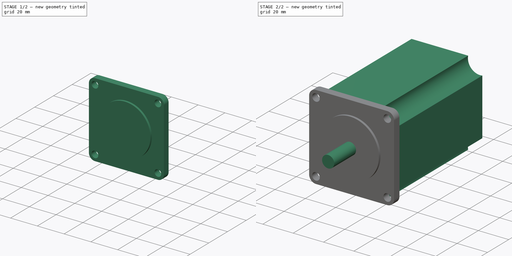
[diagram: build sequence overview — one tinted view per stage of 2, left to right]
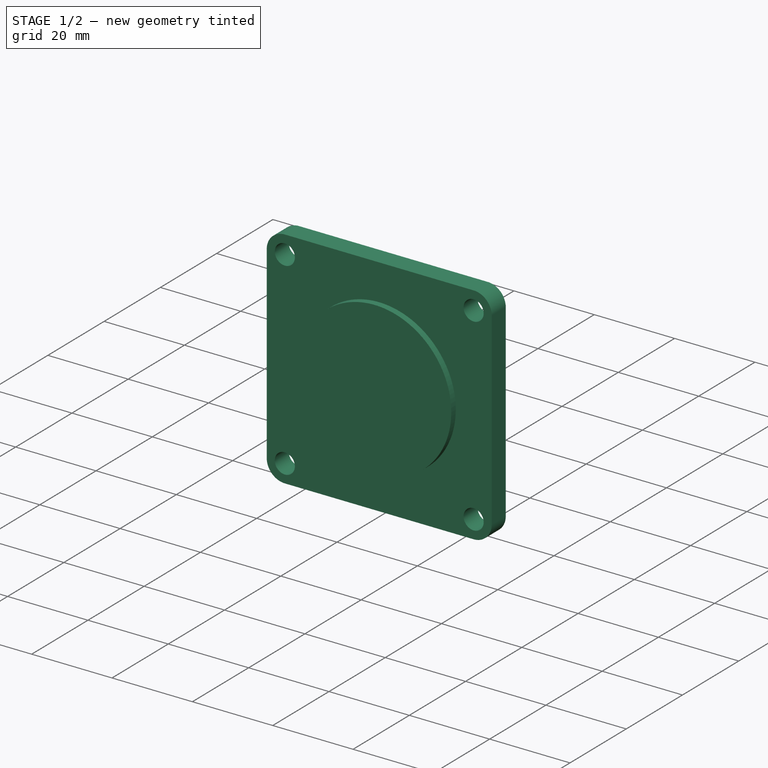
[diagram: stage 1 of 2 — iso view after this stage's code; geometry added in this stage tinted green]
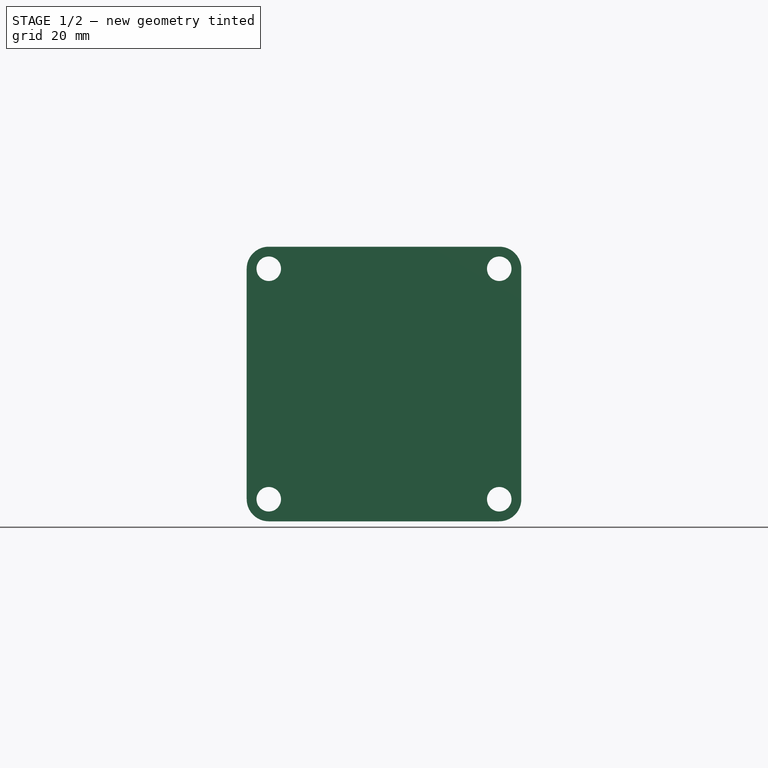
[diagram: stage 1 of 2 — front view after this stage's code; geometry added in this stage tinted green]
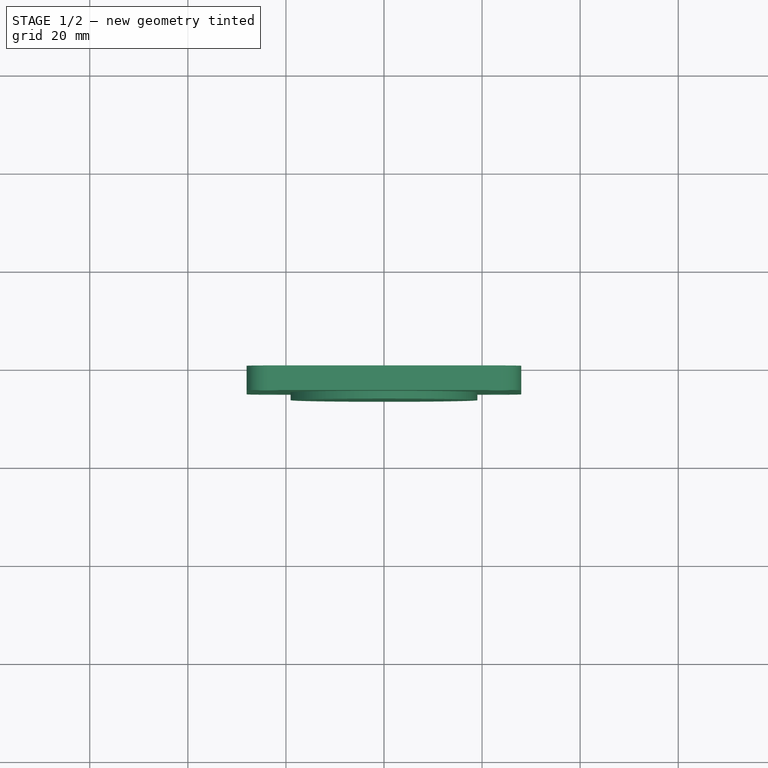
[diagram: stage 1 of 2 — top view after this stage's code; geometry added in this stage tinted green]
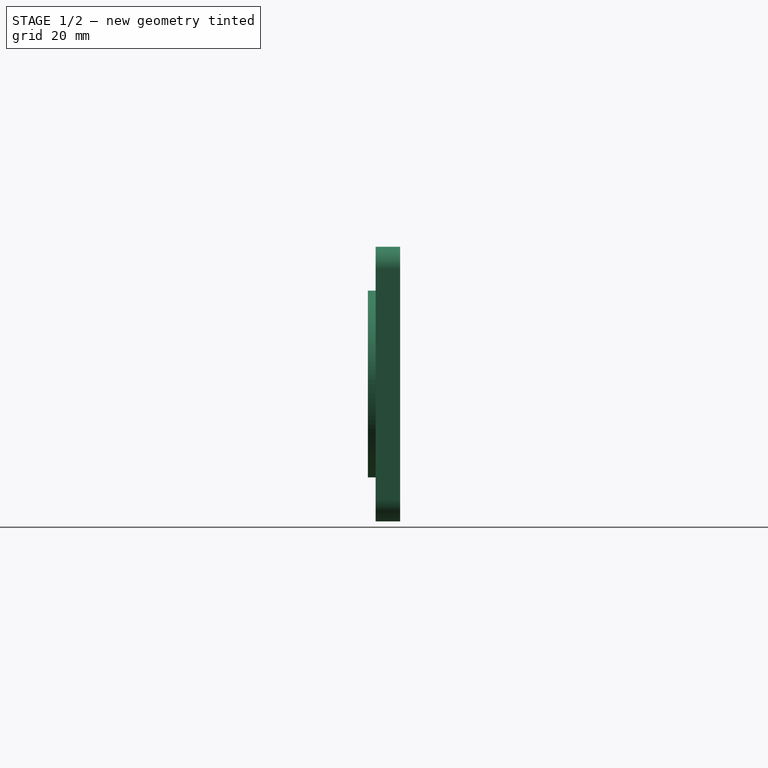
[diagram: stage 1 of 2 — right view after this stage's code; geometry added in this stage tinted green]
FCSTD DOCUMENT  (FreeCAD 0.19R)
Label: nema_23
License: All rights reserved
LicenseURL: http://en.wikipedia.org/wiki/All_rights_reserved
objects: Sketcher::SketchObject×4, PartDesign::Pad×4, PartDesign::CoordinateSystem×4, PartDesign::Body×1
note: 17 computed .brp shape members not serialized (recipe doc carries the construction recipe); baked Part::Feature solids carry a one-line shape summary decoded from their .brp

FEATURE [Sketcher::SketchObject] Sketch
  FullyConstrained = true
  MapMode = 5
  Placement = pos=(0,0,0) rot=(1,0,0;1.5708rad)
  Support = -> [XZ_Plane]
  sketch-geometry (12):
    g0: LineSegment StartX=-28 StartY=23.5 StartZ=0 EndX=-28 EndY=-23.5 EndZ=0
    g1: LineSegment StartX=28 StartY=23.5 StartZ=0 EndX=28 EndY=-23.5 EndZ=0
    g2: LineSegment StartX=-23.5 StartY=28 StartZ=0 EndX=23.5 EndY=28 EndZ=0
    g3: LineSegment StartX=-23.5 StartY=-28 StartZ=0 EndX=23.5 EndY=-28 EndZ=0
    g4: ArcOfCircle CenterX=-23.5 CenterY=-23.5 CenterZ=0 NormalX=0 NormalY=0 NormalZ=1 AngleXU=0 Radius=4.5 StartAngle=3.14159 EndAngle=4.71239
    g5: ArcOfCircle CenterX=-23.5 CenterY=23.5 CenterZ=0 NormalX=0 NormalY=0 NormalZ=1 AngleXU=0 Radius=4.5 StartAngle=1.5708 EndAngle=3.14159
    g6: ArcOfCircle CenterX=23.5 CenterY=23.5 CenterZ=0 NormalX=0 NormalY=0 NormalZ=1 AngleXU=0 Radius=4.5 StartAngle=6.28318 EndAngle=7.85398
    g7: ArcOfCircle CenterX=23.5 CenterY=-23.5 CenterZ=0 NormalX=0 NormalY=0 NormalZ=1 AngleXU=0 Radius=4.5 StartAngle=4.71239 EndAngle=6.28319
    g8: Circle CenterX=-23.5 CenterY=23.5 CenterZ=0 NormalX=0 NormalY=0 NormalZ=1 AngleXU=0 Radius=2.5
    g9: Circle CenterX=23.5 CenterY=23.5 CenterZ=0 NormalX=0 NormalY=0 NormalZ=1 AngleXU=0 Radius=2.5
    g10: Circle CenterX=-23.5 CenterY=-23.5 CenterZ=0 NormalX=0 NormalY=0 NormalZ=1 AngleXU=0 Radius=2.5
    g11: Circle CenterX=23.5 CenterY=-23.5 CenterZ=0 NormalX=0 NormalY=0 NormalZ=1 AngleXU=0 Radius=2.5
  constraints (33):
    c: Vertical(g0)
    c: Vertical(g1)
    c: Horizontal(g2)
    c: Coincident(g4,g0)
    c: Coincident(g4,g3)
    c: Coincident(g5,g2)
    c: Coincident(g6,g2)
    c: Coincident(g6,g1)
    c: Coincident(g7,g1)
    c: Coincident(g7,g3)
    c: Coincident(g5,g0)
    c: Equal(g9,g8)
    c: Equal(g8,g10)
    c: Equal(g10,g11)
    c: Diameter(g8) = 5
    c: Symmetric(g4,g7,g-2)
    c: Symmetric(g7,g6,g-1)
    c: Symmetric(g8,g9,g-2)
    c: Symmetric(g5,g6,g-2)
    c: Equal(g3,g0)
    c: Equal(g0,g2)
    c: Equal(g2,g1)
    c: DistanceX(g0,g1) = 56
    c: DistanceY(g3,g2) = 56
    c: Symmetric(g11,g9,g-1)
    c: Symmetric(g10,g11,g-2)
    c: DistanceX(g10,g11) = 47
    c: DistanceY(g11,g9) = 47
    c: Equal(g6,g5)
    c: Equal(g5,g4)
    c: Equal(g4,g7)
    c: Coincident(g7,g11)
    c: Radius(g5) = 4.5
FEATURE [PartDesign::Pad] Pad
  Direction = (1,1,1)
  Length = 5
  Length2 = 100
  Placement = pos=(0,0,0) rot=(1,0,0;1.5708rad)
  Profile = -> Sketch
  Type = 0
FEATURE [Sketcher::SketchObject] Sketch001
  FullyConstrained = true
  MapMode = 5
  Placement = pos=(0,-5,1.1e-15) rot=(1,0,0;1.5708rad)
  Support = -> [Pad]
  sketch-geometry (1):
    g0: Circle CenterX=0 CenterY=0 CenterZ=0 NormalX=0 NormalY=0 NormalZ=1 AngleXU=0 Radius=19.05
  constraints (2):
    c: Coincident(g0,g-1)
    c: Diameter(g0) = 38.1
FEATURE [PartDesign::Pad] Pad001
  BaseFeature = -> Pad
  Direction = (1,1,1)
  Length = 1.6
  Length2 = 100
  Placement = pos=(0,0,0) rot=(1,0,0;1.5708rad)
  Profile = -> Sketch001
  Type = 0
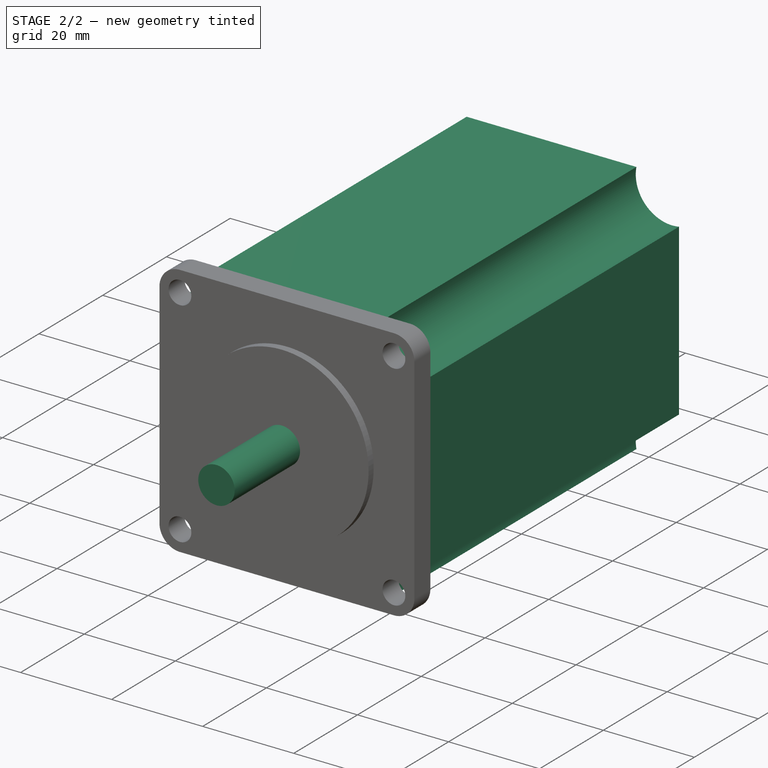
[diagram: stage 2 of 2 — iso view after this stage's code; geometry added in this stage tinted green]
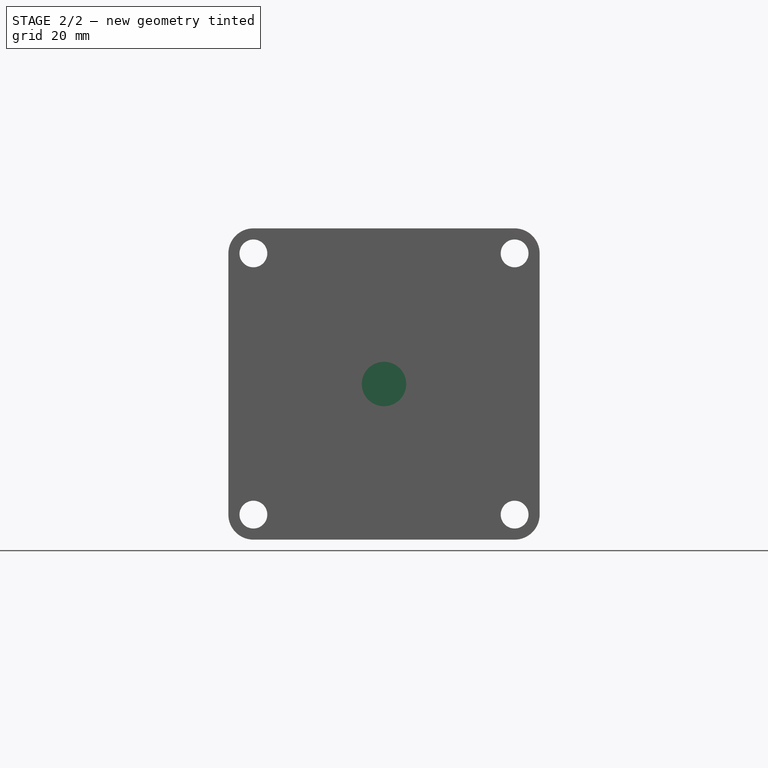
[diagram: stage 2 of 2 — front view after this stage's code; geometry added in this stage tinted green]
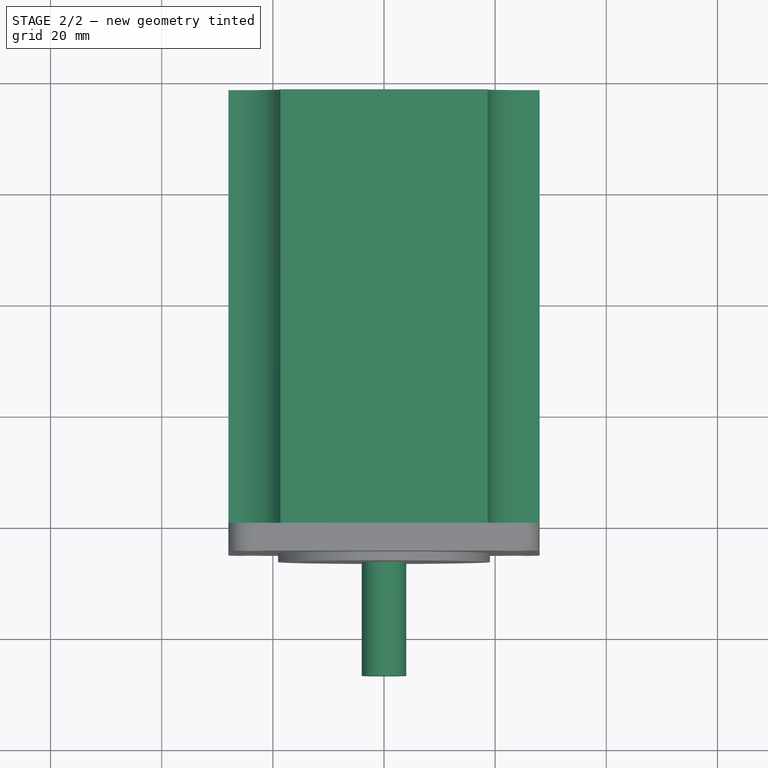
[diagram: stage 2 of 2 — top view after this stage's code; geometry added in this stage tinted green]
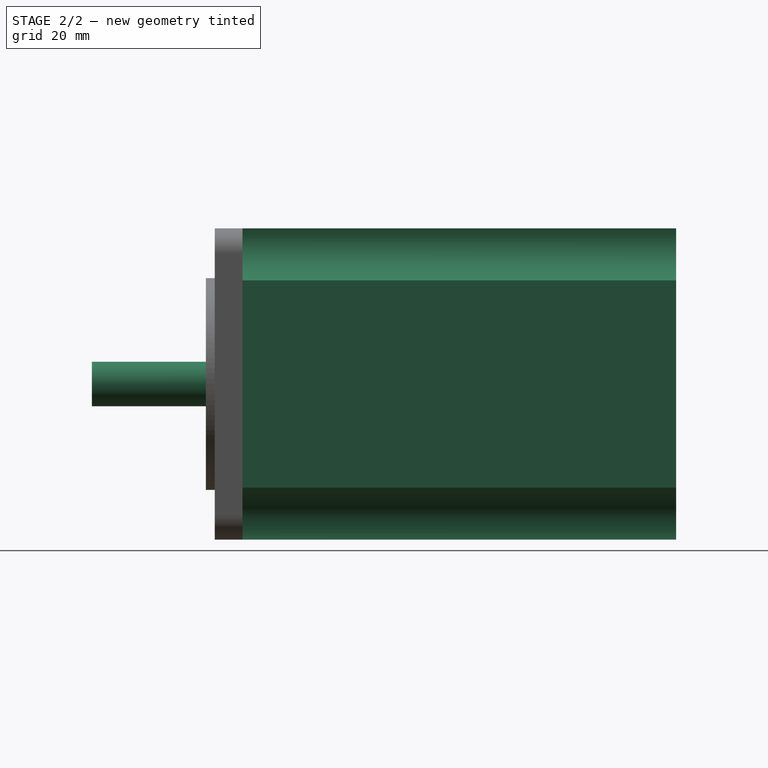
[diagram: stage 2 of 2 — right view after this stage's code; geometry added in this stage tinted green]
FEATURE [Sketcher::SketchObject] Sketch002
  FullyConstrained = true
  MapMode = 5
  Placement = pos=(0,-6.6,4.9e-15) rot=(1,0,0;1.5708rad)
  Support = -> [Pad001]
  sketch-geometry (1):
    g0: Circle CenterX=0 CenterY=0 CenterZ=0 NormalX=0 NormalY=0 NormalZ=1 AngleXU=0 Radius=4
  constraints (2):
    c: Coincident(g0,g-1)
    c: Diameter(g0) = 8
FEATURE [PartDesign::Pad] Pad002
  BaseFeature = -> Pad001
  Direction = (1,1,1)
  Length = 20.5
  Length2 = 100
  Placement = pos=(0,0,0) rot=(1,0,0;1.5708rad)
  Profile = -> Sketch002
  Type = 0
FEATURE [Sketcher::SketchObject] Sketch003
  ExternalGeometry = -> [Pad002]
  FullyConstrained = true
  MapMode = 5
  Placement = pos=(0,0,0) rot=(-1,0,0;1.5708rad)
  Support = -> [Pad002]
  sketch-geometry (8):
    g0: LineSegment StartX=-18.6419 StartY=28 StartZ=0 EndX=18.6419 EndY=28 EndZ=0
    g1: LineSegment StartX=28 StartY=18.6419 StartZ=0 EndX=28 EndY=-18.6419 EndZ=0
    g2: LineSegment StartX=-18.6419 StartY=-28 StartZ=0 EndX=18.6419 EndY=-28 EndZ=0
    g3: LineSegment StartX=-28 StartY=-18.6419 StartZ=0 EndX=-28 EndY=18.6419 EndZ=0
    g4: ArcOfCircle CenterX=-26.5 CenterY=-26.5 CenterZ=0 NormalX=0 NormalY=0 NormalZ=1 AngleXU=0 Radius=8 StartAngle=6.09457 EndAngle=8.0426
    g5: ArcOfCircle CenterX=26.5 CenterY=-26.5 CenterZ=0 NormalX=0 NormalY=0 NormalZ=1 AngleXU=0 Radius=8 StartAngle=1.38218 EndAngle=3.33021
    g6: ArcOfCircle CenterX=26.5 CenterY=26.5 CenterZ=0 NormalX=0 NormalY=0 NormalZ=1 AngleXU=0 Radius=8 StartAngle=2.95298 EndAngle=4.90101
    g7: ArcOfCircle CenterX=-26.5 CenterY=26.5 CenterZ=0 NormalX=0 NormalY=0 NormalZ=1 AngleXU=0 Radius=8 StartAngle=4.52377 EndAngle=6.4718
  constraints (24):
    c: PointOnObject(g2,g-6)
    c: PointOnObject(g1,g-3)
    c: PointOnObject(g0,g-4)
    c: PointOnObject(g3,g-5)
    c: Equal(g3,g1)
    c: Equal(g1,g0)
    c: Equal(g0,g2)
    c: Symmetric(g1,g1,g-1)
    c: Symmetric(g3,g3,g-1)
    c: Symmetric(g0,g0,g-2)
    c: Symmetric(g2,g2,g-2)
    c: Coincident(g4,g3)
    c: Coincident(g4,g2)
    c: Coincident(g5,g2)
    c: Coincident(g5,g1)
    c: Coincident(g6,g0)
    c: Coincident(g6,g1)
    c: Coincident(g7,g0)
    c: Coincident(g7,g3)
    c: Equal(g6,g7)
    c: Equal(g7,g5)
    c: Equal(g5,g4)
    c: DistanceX(g7,g6) = 53
    c: Radius(g6) = 8
FEATURE [PartDesign::Pad] Pad003
  BaseFeature = -> Pad002
  Direction = (1,1,1)
  Length = 78
  Length2 = 100
  Placement = pos=(0,0,0) rot=(1,0,0;1.5708rad)
  Profile = -> Sketch003
  Type = 0
FEATURE [PartDesign::CoordinateSystem] LCS_shaft
  AttacherType = Attacher::AttachEngine3D
  MapMode = 11
  Placement = pos=(0,-27.1,3.5e-14) rot=(0.57735,-0.57735,0.57735;2.0944rad)
  Support = -> [Pad003]
FEATURE [PartDesign::CoordinateSystem] LCS_m1
  AttacherType = Attacher::AttachEngine3D
  MapMode = 11
  Placement = pos=(-23.5,-5,23.5) rot=(0.57735,-0.57735,0.57735;2.0944rad)
  Support = -> [Pad003]
FEATURE [PartDesign::CoordinateSystem] LCS_m2
  AttacherType = Attacher::AttachEngine3D
  MapMode = 11
  Placement = pos=(23.5,-5,23.5) rot=(0.57735,-0.57735,0.57735;2.0944rad)
  Support = -> [Pad003]
FEATURE [PartDesign::CoordinateSystem] LCS_m3
  AttacherType = Attacher::AttachEngine3D
  MapMode = 11
  Placement = pos=(23.5,-5,-23.5) rot=(0.57735,-0.57735,0.57735;2.0944rad)
  Support = -> [Pad003]
FEATURE [PartDesign::Body] Body
  Group = -> [Sketch,Pad,Sketch001,Pad001,Sketch002,Pad002,Sketch003,Pad003,LCS_shaft,LCS_m1,LCS_m2,LCS_m3]
  Origin = -> Origin
  Tip = -> Pad003
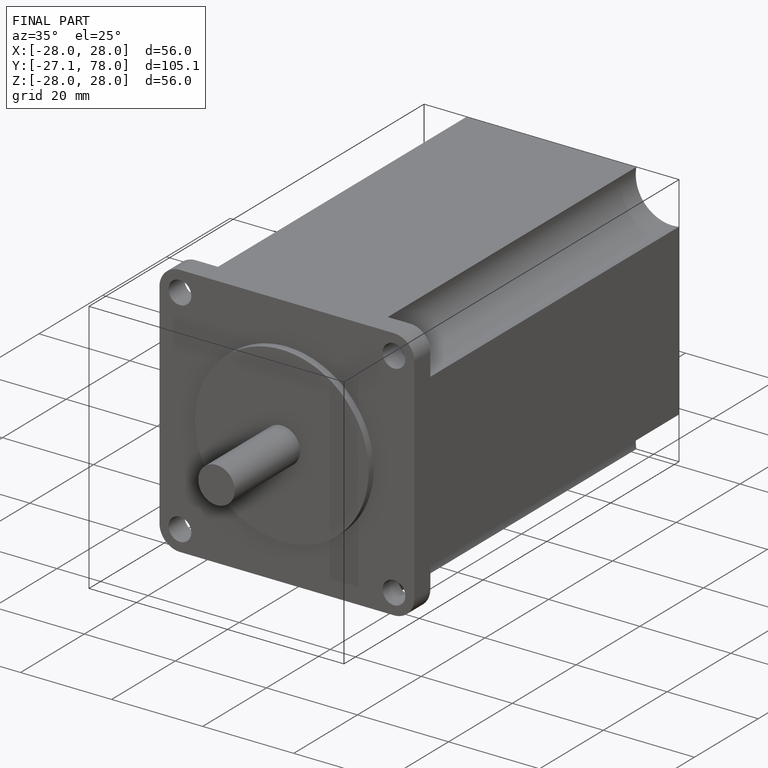
[diagram: finished part — iso view with bounding-box wireframe]
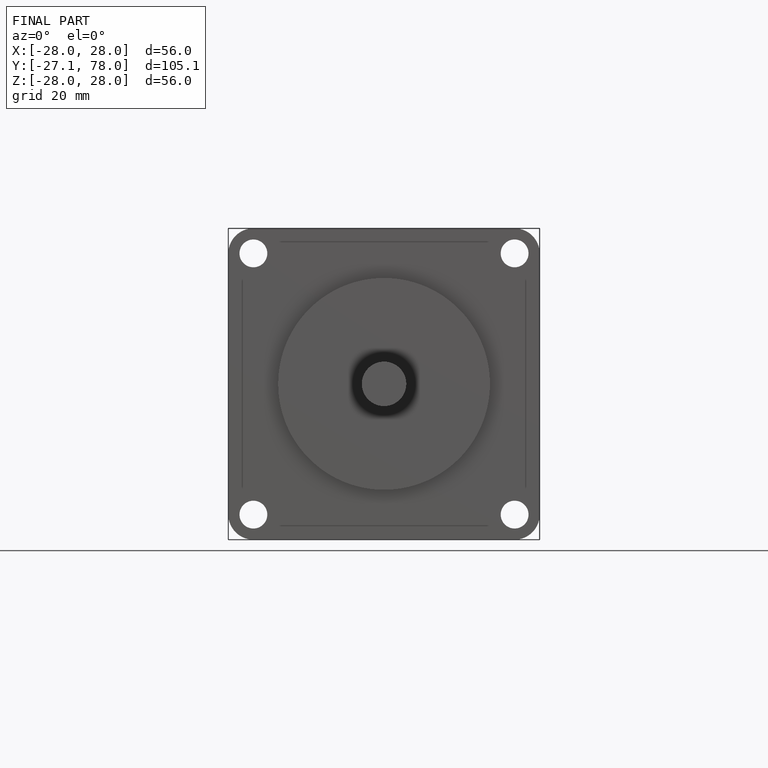
[diagram: finished part — front view with bounding-box wireframe]
